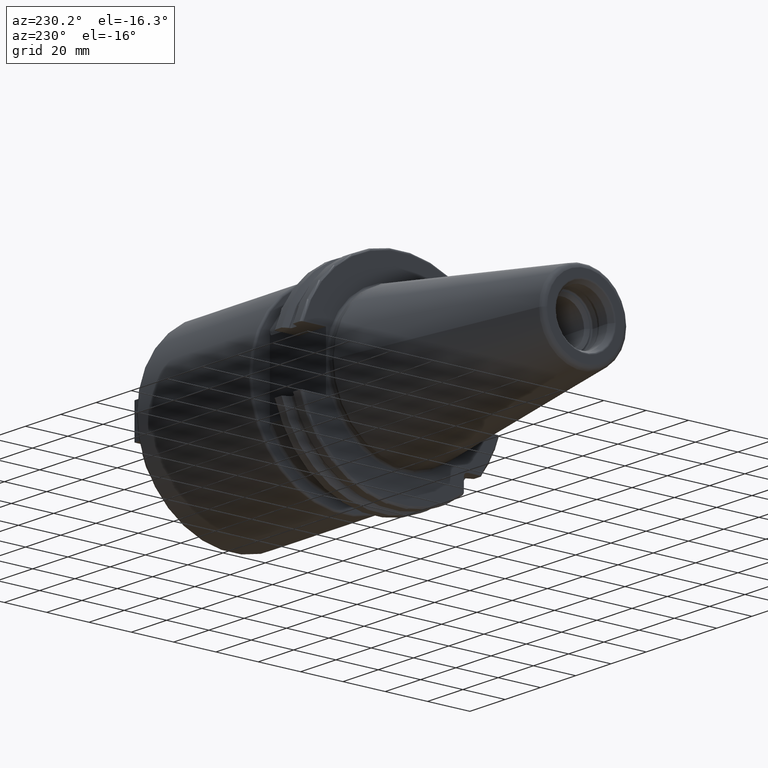
[diagram: clean part render]
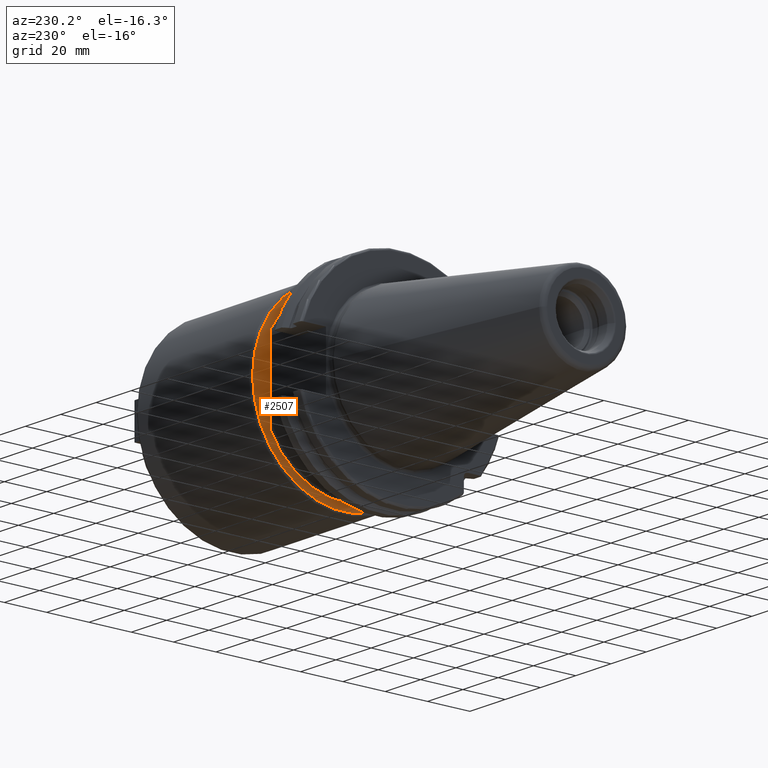
[diagram: same view with one face highlighted and labeled with its STEP entity id]
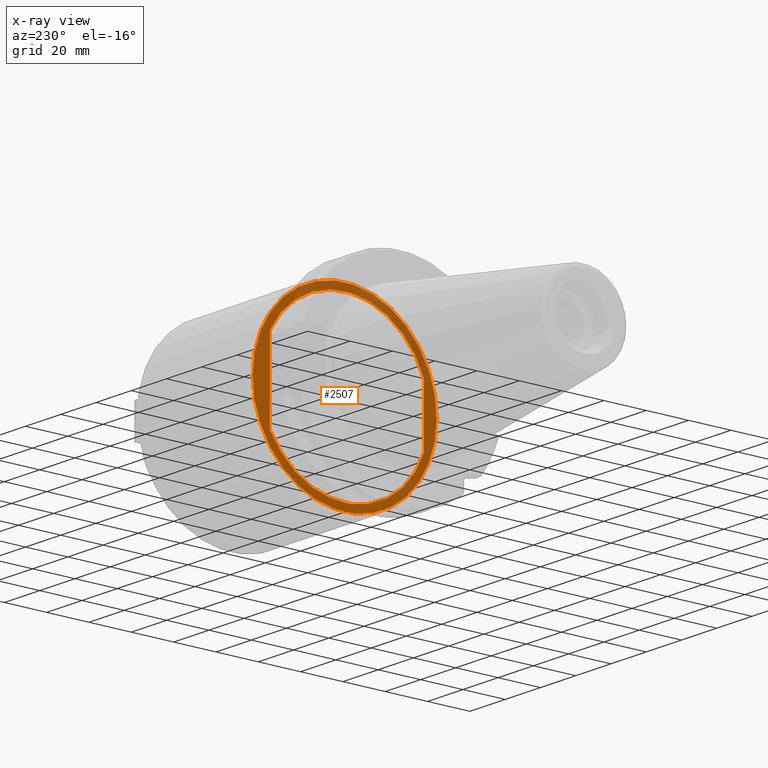
[diagram: x-ray of the same camera — body ghosted, the highlighted face saturated]
A machine part, auxiliary view. The second image highlights one B-rep face of the part: STEP entity #2507.
The next image is the same camera in x-ray: the body ghosted, the highlighted face saturated — about 51% of this face is hidden behind the body in this view.
In plain terms, the highlighted planar face has unit normal (1, 0, 0).
Its self-contained STEP definition (entity closure, byte-faithful):
#126=DIRECTION('',(0.E0,0.E0,1.E0));
#127=VECTOR('',#126,3.762499169435E1);
#128=CARTESIAN_POINT('',(3.505E1,3.53E1,-1.881249584718E1));
#129=LINE('',#128,#127);
#181=DIRECTION('',(0.E0,0.E0,-1.E0));
#182=VECTOR('',#181,2.783882181415E1);
#183=CARTESIAN_POINT('',(3.505E1,-3.75E1,1.391941090708E1));
#184=LINE('',#183,#182);
#287=CARTESIAN_POINT('',(3.505E1,0.E0,0.E0));
#288=DIRECTION('',(1.E0,0.E0,0.E0));
#289=DIRECTION('',(0.E0,8.825E-1,4.703123961794E-1));
#290=AXIS2_PLACEMENT_3D('',#287,#288,#289);
#292=CARTESIAN_POINT('',(3.505E1,-3.75E1,1.391941090708E1));
#332=CARTESIAN_POINT('',(3.505E1,3.53E1,1.881249584718E1));
#334=CARTESIAN_POINT('',(3.505E1,0.E0,0.E0));
#335=DIRECTION('',(1.E0,0.E0,0.E0));
#336=DIRECTION('',(0.E0,-1.E0,0.E0));
#337=AXIS2_PLACEMENT_3D('',#334,#335,#336);
#339=CARTESIAN_POINT('',(3.505E1,0.E0,0.E0));
#340=DIRECTION('',(1.E0,0.E0,0.E0));
#341=DIRECTION('',(0.E0,1.E0,0.E0));
#342=AXIS2_PLACEMENT_3D('',#339,#340,#341);
#344=CARTESIAN_POINT('',(3.505E1,0.E0,0.E0));
#345=DIRECTION('',(1.E0,0.E0,0.E0));
#346=DIRECTION('',(0.E0,-9.375E-1,-3.479852726769E-1));
#347=AXIS2_PLACEMENT_3D('',#344,#345,#346);
#349=CARTESIAN_POINT('',(3.505E1,3.53E1,-1.881249584718E1));
#388=CARTESIAN_POINT('',(3.505E1,-3.75E1,-1.391941090708E1));
#2063=VERTEX_POINT('',#332);
#2064=VERTEX_POINT('',#292);
#2065=VERTEX_POINT('',#388);
#2066=VERTEX_POINT('',#349);
#2075=CARTESIAN_POINT('',(3.505E1,-4.35E1,0.E0));
#2076=CARTESIAN_POINT('',(3.505E1,4.35E1,4.041397503827E-14));
#2077=VERTEX_POINT('',#2075);
#2078=VERTEX_POINT('',#2076);
#2489=CARTESIAN_POINT('',(3.505E1,3.53E1,4.87375E1));
#2490=DIRECTION('',(1.E0,0.E0,0.E0));
#2491=DIRECTION('',(0.E0,0.E0,-1.E0));
#2492=AXIS2_PLACEMENT_3D('',#2489,#2490,#2491);
#2493=PLANE('',#2492);
#2495=ORIENTED_EDGE('',*,*,#2494,.T.);
#2497=ORIENTED_EDGE('',*,*,#2496,.T.);
#2498=EDGE_LOOP('',(#2495,#2497));
#2499=FACE_OUTER_BOUND('',#2498,.F.);
#2500=ORIENTED_EDGE('',*,*,#2481,.F.);
#2501=ORIENTED_EDGE('',*,*,#2289,.F.);
#2503=ORIENTED_EDGE('',*,*,#2502,.F.);
#2504=ORIENTED_EDGE('',*,*,#2350,.F.);
#2505=EDGE_LOOP('',(#2500,#2501,#2503,#2504));
#2506=FACE_BOUND('',#2505,.F.);
#2507=ADVANCED_FACE('',(#2499,#2506),#2493,.F.);
#291=CIRCLE('',#290,4.E1);
#338=CIRCLE('',#337,4.35E1);
#343=CIRCLE('',#342,4.35E1);
#348=CIRCLE('',#347,4.E1);
#2289=EDGE_CURVE('',#2066,#2063,#129,.T.);
#2350=EDGE_CURVE('',#2064,#2065,#184,.T.);
#2481=EDGE_CURVE('',#2063,#2064,#291,.T.);
#2494=EDGE_CURVE('',#2077,#2078,#338,.T.);
#2496=EDGE_CURVE('',#2078,#2077,#343,.T.);
#2502=EDGE_CURVE('',#2065,#2066,#348,.T.);